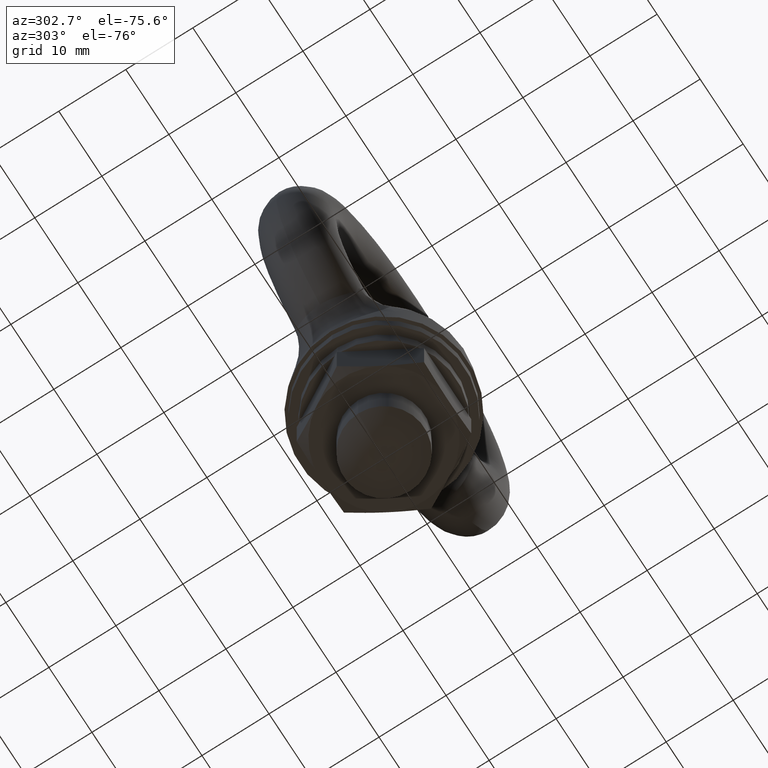
[diagram: clean part render]
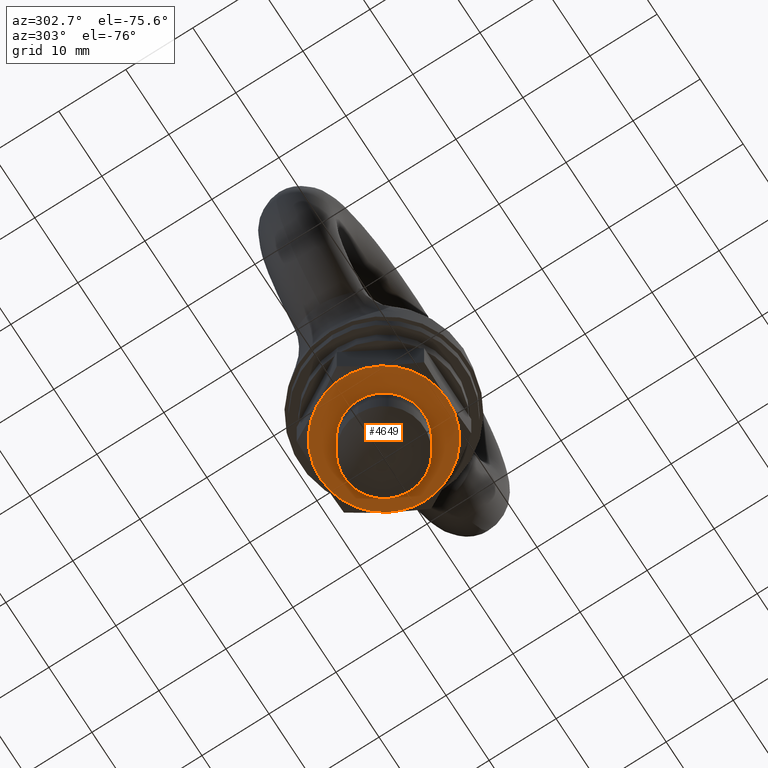
[diagram: same view with one face highlighted and labeled with its STEP entity id]
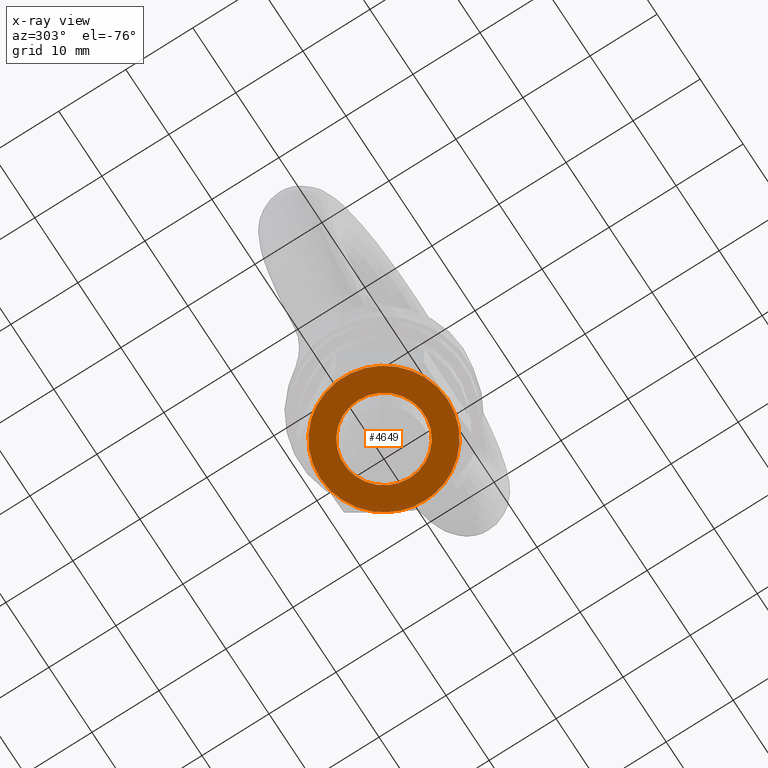
[diagram: x-ray of the same camera — body ghosted, the highlighted face saturated]
A machine part, auxiliary view. The second image highlights one B-rep face of the part: STEP entity #4649.
The next image is the same camera in x-ray: the body ghosted, the highlighted face saturated — about 0% of this face is hidden behind the body in this view.
In plain terms, the highlighted planar face has unit normal (0, 0, 1).
Its self-contained STEP definition (entity closure, byte-faithful):
#1127 = DIRECTION ( 'NONE',  ( 0.0000000000000000000, 0.0000000000000000000, -1.000000000000000000 ) ) ;
#1128 = CARTESIAN_POINT ( 'NONE',  ( 0.0000000000000000000, 0.0000000000000000000, -39.29999900000009900 ) ) ;
#1129 = AXIS2_PLACEMENT_3D ( 'NONE', #1128, #1127, #1224 ) ;
#1130 = CIRCLE ( 'NONE', #1129, 9.500000000000000000 ) ;
#1132 = CIRCLE ( 'NONE', #1151, 9.500000000000000000 ) ;
#1148 = DIRECTION ( 'NONE',  ( 1.000000000000000000, 1.776356839400250500E-015, 0.0000000000000000000 ) ) ;
#1149 = DIRECTION ( 'NONE',  ( 0.0000000000000000000, 0.0000000000000000000, -1.000000000000000000 ) ) ;
#1150 = CARTESIAN_POINT ( 'NONE',  ( 0.0000000000000000000, 0.0000000000000000000, -39.29999900000009900 ) ) ;
#1151 = AXIS2_PLACEMENT_3D ( 'NONE', #1150, #1149, #1148 ) ;
#1224 = DIRECTION ( 'NONE',  ( 1.000000000000000000, 0.0000000000000000000, 0.0000000000000000000 ) ) ;
#3326 = DIRECTION ( 'NONE',  ( 1.000000000000000000, 8.881784197001252300E-016, 0.0000000000000000000 ) ) ;
#3327 = DIRECTION ( 'NONE',  ( 0.0000000000000000000, 0.0000000000000000000, -1.000000000000000000 ) ) ;
#3328 = CARTESIAN_POINT ( 'NONE',  ( 0.0000000000000000000, 0.0000000000000000000, -39.29999900000009900 ) ) ;
#3329 = AXIS2_PLACEMENT_3D ( 'NONE', #3328, #3327, #3326 ) ;
#3330 = CIRCLE ( 'NONE', #3329, 9.500000000000000000 ) ;
#3342 = DIRECTION ( 'NONE',  ( 1.000000000000000000, -8.881784197001252300E-016, 0.0000000000000000000 ) ) ;
#3343 = DIRECTION ( 'NONE',  ( 0.0000000000000000000, 0.0000000000000000000, -1.000000000000000000 ) ) ;
#3344 = CARTESIAN_POINT ( 'NONE',  ( 0.0000000000000000000, 0.0000000000000000000, -39.29999900000009900 ) ) ;
#3345 = AXIS2_PLACEMENT_3D ( 'NONE', #3344, #3343, #3342 ) ;
#3346 = CIRCLE ( 'NONE', #3345, 9.500000000000000000 ) ;
#3347 = DIRECTION ( 'NONE',  ( -1.000000000000000000, 0.0000000000000000000, 0.0000000000000000000 ) ) ;
#3348 = DIRECTION ( 'NONE',  ( 0.0000000000000000000, 0.0000000000000000000, -1.000000000000000000 ) ) ;
#3349 = AXIS2_PLACEMENT_3D ( 'NONE', #3380, #3348, #3347 ) ;
#3350 = CIRCLE ( 'NONE', #3349, 9.500000000000000000 ) ;
#3375 = CARTESIAN_POINT ( 'NONE',  ( 8.227241919940189200, 4.749998988502939700, -39.29999900000009900 ) ) ;
#3380 = CARTESIAN_POINT ( 'NONE',  ( 0.0000000000000000000, 0.0000000000000000000, -39.29999900000009900 ) ) ;
#3396 = DIRECTION ( 'NONE',  ( 1.000000000000000000, 0.0000000000000000000, 0.0000000000000000000 ) ) ;
#3397 = DIRECTION ( 'NONE',  ( 0.0000000000000000000, 0.0000000000000000000, 1.000000000000000000 ) ) ;
#3398 = CARTESIAN_POINT ( 'NONE',  ( 0.0000000000000000000, 0.0000000000000000000, -39.29999900000009900 ) ) ;
#3399 = AXIS2_PLACEMENT_3D ( 'NONE', #3398, #3397, #3396 ) ;
#3400 = PLANE ( 'NONE',  #3399 ) ;
#3401 = FACE_OUTER_BOUND ( 'NONE', #4841, .T. ) ;
#3402 = FACE_BOUND ( 'NONE', #4707, .T. ) ;
#3424 = CARTESIAN_POINT ( 'NONE',  ( -6.000000000000000000, 0.0000000000000000000, -39.29999900000015600 ) ) ;
#3425 = DIRECTION ( 'NONE',  ( 1.000000000000000000, 0.0000000000000000000, 0.0000000000000000000 ) ) ;
#3426 = DIRECTION ( 'NONE',  ( 0.0000000000000000000, 0.0000000000000000000, -1.000000000000000000 ) ) ;
#3427 = CARTESIAN_POINT ( 'NONE',  ( 0.0000000000000000000, 0.0000000000000000000, -39.29999900000015600 ) ) ;
#3428 = AXIS2_PLACEMENT_3D ( 'NONE', #3427, #3426, #3425 ) ;
#3429 = CIRCLE ( 'NONE', #3428, 6.000000000000000000 ) ;
#3430 = CARTESIAN_POINT ( 'NONE',  ( 6.000000000000000000, 7.347638122934263500E-016, -39.29999900000015600 ) ) ;
#3586 = CARTESIAN_POINT ( 'NONE',  ( 8.227241919940189200, -4.749998988502939700, -39.29999900000009900 ) ) ;
#3607 = DIRECTION ( 'NONE',  ( 0.0000000000000000000, 0.0000000000000000000, -1.000000000000000000 ) ) ;
#3608 = CARTESIAN_POINT ( 'NONE',  ( 0.0000000000000000000, 0.0000000000000000000, -39.29999900000009900 ) ) ;
#3609 = AXIS2_PLACEMENT_3D ( 'NONE', #3608, #3607, #3770 ) ;
#3610 = CARTESIAN_POINT ( 'NONE',  ( 0.0000000000000000000, 9.500000000000000000, -39.29999900000009900 ) ) ;
#3701 = CARTESIAN_POINT ( 'NONE',  ( -8.227241919940189200, 4.749998988502929900, -39.29999900000009900 ) ) ;
#3764 = DIRECTION ( 'NONE',  ( 1.000000000000000000, 0.0000000000000000000, 0.0000000000000000000 ) ) ;
#3765 = DIRECTION ( 'NONE',  ( 0.0000000000000000000, 0.0000000000000000000, -1.000000000000000000 ) ) ;
#3766 = CARTESIAN_POINT ( 'NONE',  ( 0.0000000000000000000, 0.0000000000000000000, -39.29999900000009900 ) ) ;
#3767 = AXIS2_PLACEMENT_3D ( 'NONE', #3766, #3765, #3764 ) ;
#3769 = CARTESIAN_POINT ( 'NONE',  ( 9.500000000000000000, 0.0000000000000000000, -39.29999900000009900 ) ) ;
#3770 = DIRECTION ( 'NONE',  ( 1.000000000000000000, 0.0000000000000000000, 0.0000000000000000000 ) ) ;
#3784 = CIRCLE ( 'NONE', #3609, 9.500000000000000000 ) ;
#3804 = CIRCLE ( 'NONE', #3767, 9.500000000000000000 ) ;
#3818 = CARTESIAN_POINT ( 'NONE',  ( -8.227241919940189200, -4.749998988502929900, -39.29999900000009900 ) ) ;
#3853 = DIRECTION ( 'NONE',  ( 1.000000000000000000, 0.0000000000000000000, 0.0000000000000000000 ) ) ;
#3854 = DIRECTION ( 'NONE',  ( 0.0000000000000000000, 0.0000000000000000000, -1.000000000000000000 ) ) ;
#3855 = AXIS2_PLACEMENT_3D ( 'NONE', #3856, #3854, #3853 ) ;
#3856 = CARTESIAN_POINT ( 'NONE',  ( 0.0000000000000000000, 0.0000000000000000000, -39.29999900000015600 ) ) ;
#3907 = CIRCLE ( 'NONE', #3855, 6.000000000000000000 ) ;
#3970 = CARTESIAN_POINT ( 'NONE',  ( 0.0000000000000000000, -9.500000000000000000, -39.29999900000009900 ) ) ;
#4334 = ORIENTED_EDGE ( 'NONE', *, *, #4679, .T. ) ;
#4492 = ORIENTED_EDGE ( 'NONE', *, *, #4493, .T. ) ;
#4493 = EDGE_CURVE ( 'NONE', #4643, #4720, #1132, .T. ) ;
#4495 = ORIENTED_EDGE ( 'NONE', *, *, #4719, .T. ) ;
#4496 = ORIENTED_EDGE ( 'NONE', *, *, #4497, .T. ) ;
#4497 = EDGE_CURVE ( 'NONE', #4619, #4857, #1130, .T. ) ;
#4619 = VERTEX_POINT ( 'NONE', #3586 ) ;
#4633 = VERTEX_POINT ( 'NONE', #3430 ) ;
#4635 = EDGE_CURVE ( 'NONE', #4633, #4636, #3429, .T. ) ;
#4636 = VERTEX_POINT ( 'NONE', #3424 ) ;
#4643 = VERTEX_POINT ( 'NONE', #3375 ) ;
#4649 = ADVANCED_FACE ( 'NONE', ( #3402, #3401 ), #3400, .F. ) ;
#4668 = ORIENTED_EDGE ( 'NONE', *, *, #4669, .T. ) ;
#4669 = EDGE_CURVE ( 'NONE', #4732, #4724, #3350, .T. ) ;
#4670 = ORIENTED_EDGE ( 'NONE', *, *, #4671, .T. ) ;
#4671 = EDGE_CURVE ( 'NONE', #4724, #4643, #3346, .T. ) ;
#4679 = EDGE_CURVE ( 'NONE', #4857, #4737, #3330, .T. ) ;
#4707 = EDGE_LOOP ( 'NONE', ( #4838, #4840 ) ) ;
#4719 = EDGE_CURVE ( 'NONE', #4720, #4619, #3784, .T. ) ;
#4720 = VERTEX_POINT ( 'NONE', #3769 ) ;
#4724 = VERTEX_POINT ( 'NONE', #3610 ) ;
#4732 = VERTEX_POINT ( 'NONE', #3701 ) ;
#4737 = VERTEX_POINT ( 'NONE', #3818 ) ;
#4798 = ORIENTED_EDGE ( 'NONE', *, *, #4799, .T. ) ;
#4799 = EDGE_CURVE ( 'NONE', #4737, #4732, #3804, .T. ) ;
#4838 = ORIENTED_EDGE ( 'NONE', *, *, #4839, .F. ) ;
#4839 = EDGE_CURVE ( 'NONE', #4636, #4633, #3907, .T. ) ;
#4840 = ORIENTED_EDGE ( 'NONE', *, *, #4635, .F. ) ;
#4841 = EDGE_LOOP ( 'NONE', ( #4492, #4495, #4496, #4334, #4798, #4668, #4670 ) ) ;
#4857 = VERTEX_POINT ( 'NONE', #3970 ) ;